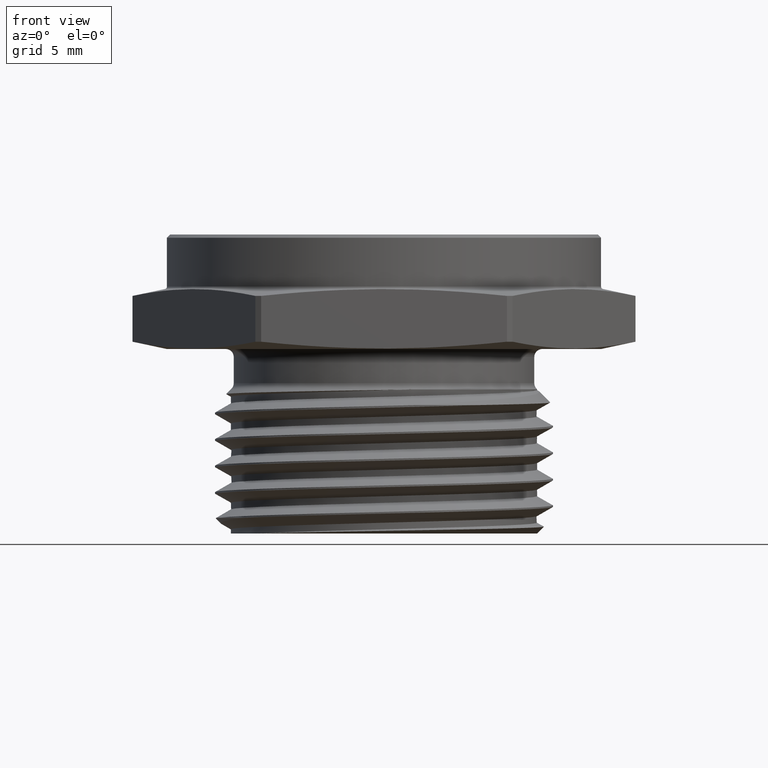
[diagram: clean part render]
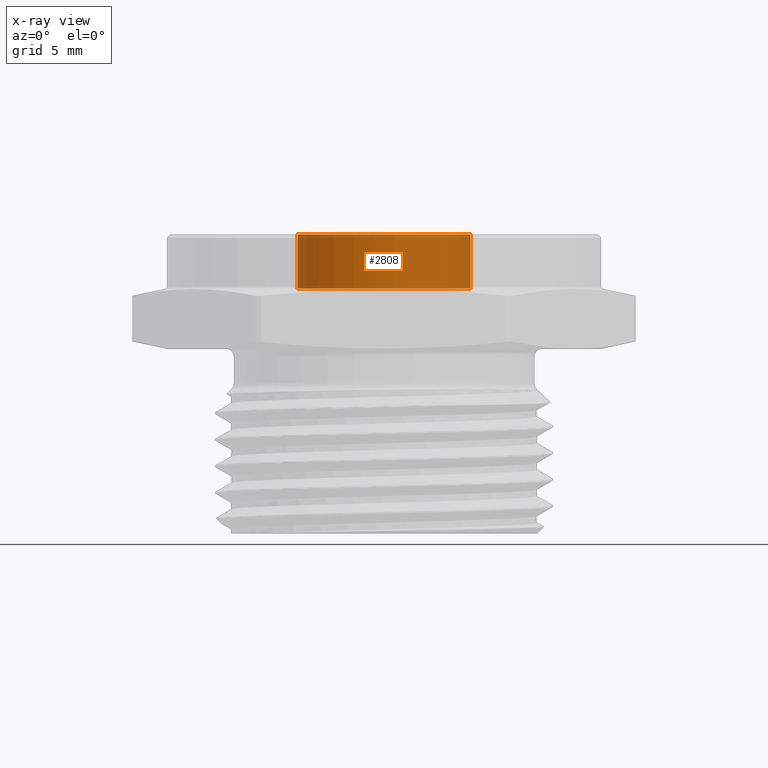
[diagram: x-ray — body ghosted, one internal face saturated and labeled with its STEP entity id]
A machine part, front view, then the same camera in x-ray: the body is ghosted and one INTERNAL B-rep face — a face not visible from any outside direction — is saturated and labeled: STEP entity #2808.
In plain terms, the highlighted cylindrical surface (partial cylindrical patch) has radius 6.8961 mm, axis along (0, 0, 1).
Its self-contained STEP definition (entity closure, byte-faithful):
#704 = LINE ( 'NONE', #1822, #706 ) ;
#705 = LINE ( 'NONE', #1828, #710 ) ;
#706 = VECTOR ( 'NONE', #1823, 39.37007874015748100 ) ;
#708 = CIRCLE ( 'NONE', #1556, 0.2715000000000000200 ) ;
#710 = VECTOR ( 'NONE', #1824, 39.37007874015748100 ) ;
#711 = CIRCLE ( 'NONE', #1557, 0.2715000000000000200 ) ;
#738 = FACE_OUTER_BOUND ( 'NONE', #2448, .T. ) ;
#1468 = DIRECTION ( 'NONE',  ( 1.000000000000000000, 0.0000000000000000000, 0.0000000000000000000 ) ) ;
#1469 = CARTESIAN_POINT ( 'NONE',  ( 0.0000000000000000000, 0.0000000000000000000, 0.1899999999999999700 ) ) ;
#1470 = DIRECTION ( 'NONE',  ( 0.0000000000000000000, 0.0000000000000000000, 1.000000000000000000 ) ) ;
#1556 = AXIS2_PLACEMENT_3D ( 'NONE', #1832, #1833, #1834 ) ;
#1557 = AXIS2_PLACEMENT_3D ( 'NONE', #1835, #1836, #1837 ) ;
#1579 = AXIS2_PLACEMENT_3D ( 'NONE', #1469, #1470, #1468 ) ;
#1822 = CARTESIAN_POINT ( 'NONE',  ( -0.2715000000000000200, 3.324916059685064000E-017, 0.1899999999999999700 ) ) ;
#1823 = DIRECTION ( 'NONE',  ( 0.0000000000000000000, 0.0000000000000000000, 1.000000000000000000 ) ) ;
#1824 = DIRECTION ( 'NONE',  ( 0.0000000000000000000, 0.0000000000000000000, 1.000000000000000000 ) ) ;
#1828 = CARTESIAN_POINT ( 'NONE',  ( 0.2715000000000000200, 0.0000000000000000000, 0.1899999999999999700 ) ) ;
#1832 = CARTESIAN_POINT ( 'NONE',  ( 0.0000000000000000000, 0.0000000000000000000, 0.1899999999999999700 ) ) ;
#1833 = DIRECTION ( 'NONE',  ( 0.0000000000000000000, 0.0000000000000000000, 1.000000000000000000 ) ) ;
#1834 = DIRECTION ( 'NONE',  ( 1.000000000000000000, 0.0000000000000000000, 0.0000000000000000000 ) ) ;
#1835 = CARTESIAN_POINT ( 'NONE',  ( 0.0000000000000000000, 0.0000000000000000000, 0.3599999999999999900 ) ) ;
#1836 = DIRECTION ( 'NONE',  ( 0.0000000000000000000, 0.0000000000000000000, 1.000000000000000000 ) ) ;
#1837 = DIRECTION ( 'NONE',  ( 1.000000000000000000, 0.0000000000000000000, 0.0000000000000000000 ) ) ;
#1839 = CARTESIAN_POINT ( 'NONE',  ( -0.2715000000000000200, 3.324916059685064000E-017, 0.1899999999999999700 ) ) ;
#1892 = CARTESIAN_POINT ( 'NONE',  ( 0.2715000000000000200, 0.0000000000000000000, 0.3599999999999999900 ) ) ;
#1898 = CARTESIAN_POINT ( 'NONE',  ( -0.2715000000000000200, 3.324916059685064000E-017, 0.3599999999999999900 ) ) ;
#1899 = CARTESIAN_POINT ( 'NONE',  ( 0.2715000000000000200, 0.0000000000000000000, 0.1899999999999999700 ) ) ;
#2448 = EDGE_LOOP ( 'NONE', ( #2779, #2783, #2776, #2780 ) ) ;
#2636 = EDGE_CURVE ( 'NONE', #2735, #2731, #704, .T. ) ;
#2639 = EDGE_CURVE ( 'NONE', #2733, #2732, #705, .T. ) ;
#2640 = EDGE_CURVE ( 'NONE', #2735, #2733, #708, .T. ) ;
#2641 = EDGE_CURVE ( 'NONE', #2731, #2732, #711, .T. ) ;
#2731 = VERTEX_POINT ( 'NONE', #1898 ) ;
#2732 = VERTEX_POINT ( 'NONE', #1892 ) ;
#2733 = VERTEX_POINT ( 'NONE', #1899 ) ;
#2735 = VERTEX_POINT ( 'NONE', #1839 ) ;
#2776 = ORIENTED_EDGE ( 'NONE', *, *, #2639, .T. ) ;
#2779 = ORIENTED_EDGE ( 'NONE', *, *, #2636, .F. ) ;
#2780 = ORIENTED_EDGE ( 'NONE', *, *, #2641, .F. ) ;
#2783 = ORIENTED_EDGE ( 'NONE', *, *, #2640, .T. ) ;
#2808 = ADVANCED_FACE ( 'NONE', ( #738 ), #3271, .T. ) ;
#3271 = CYLINDRICAL_SURFACE ( 'NONE', #1579, 0.2715000000000000200 ) ;